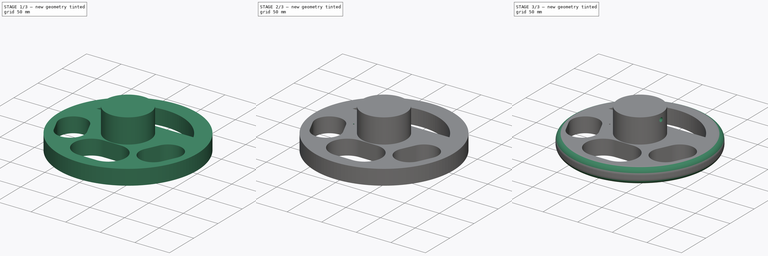
[diagram: build sequence overview — one tinted view per stage of 3, left to right]
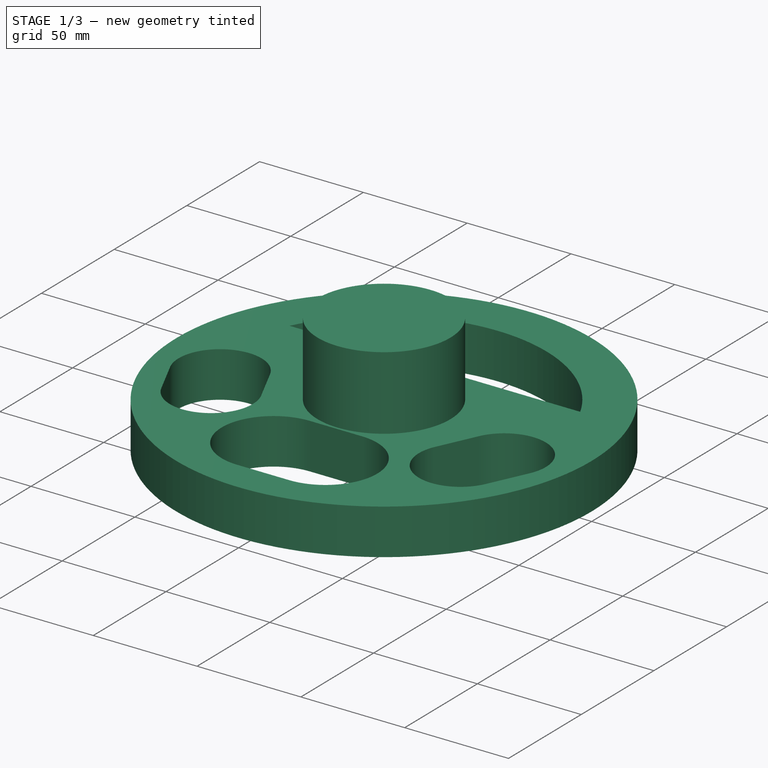
[diagram: stage 1 of 3 — iso view after this stage's code; geometry added in this stage tinted green]
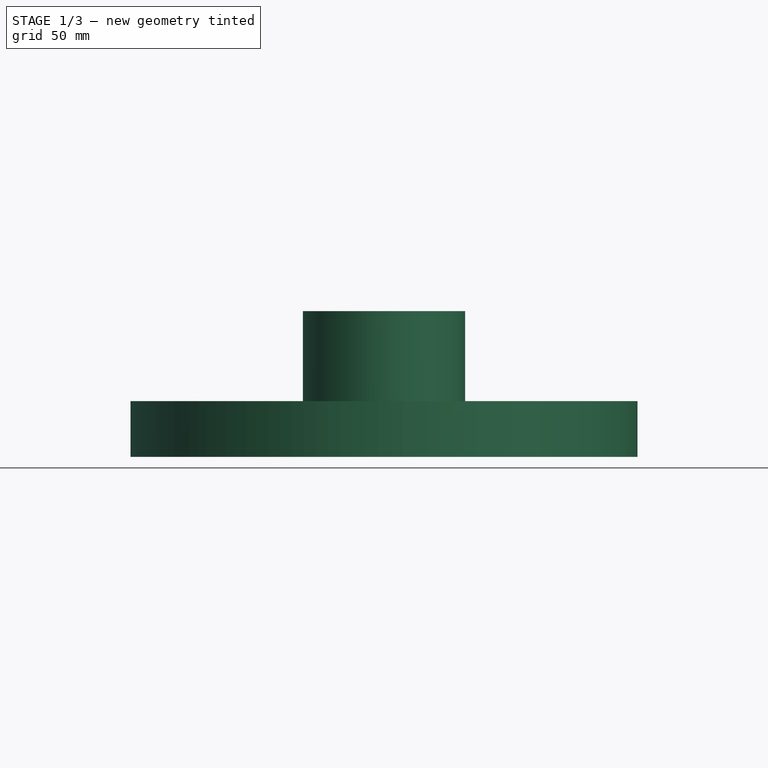
[diagram: stage 1 of 3 — front view after this stage's code; geometry added in this stage tinted green]
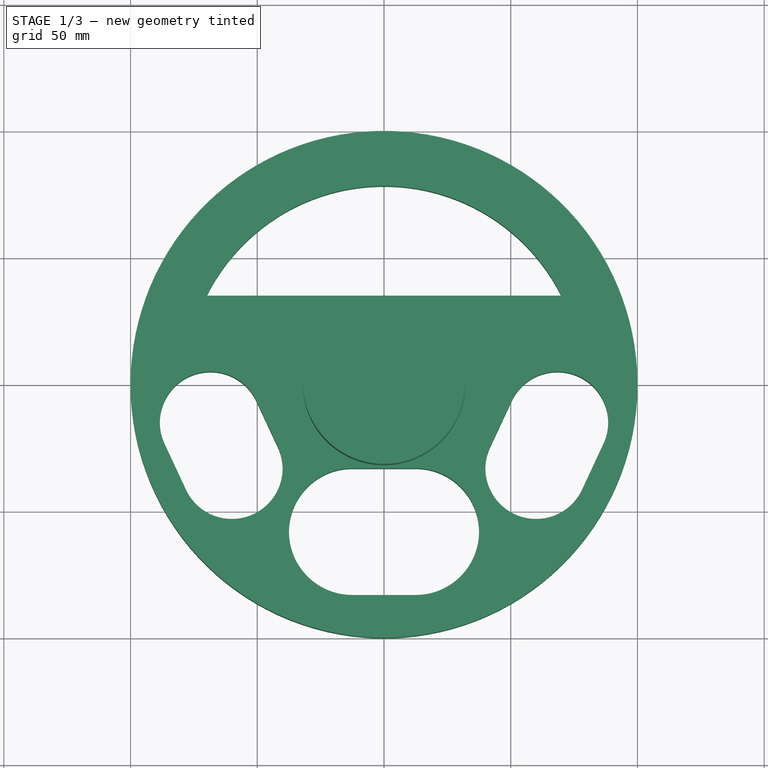
[diagram: stage 1 of 3 — top view after this stage's code; geometry added in this stage tinted green]
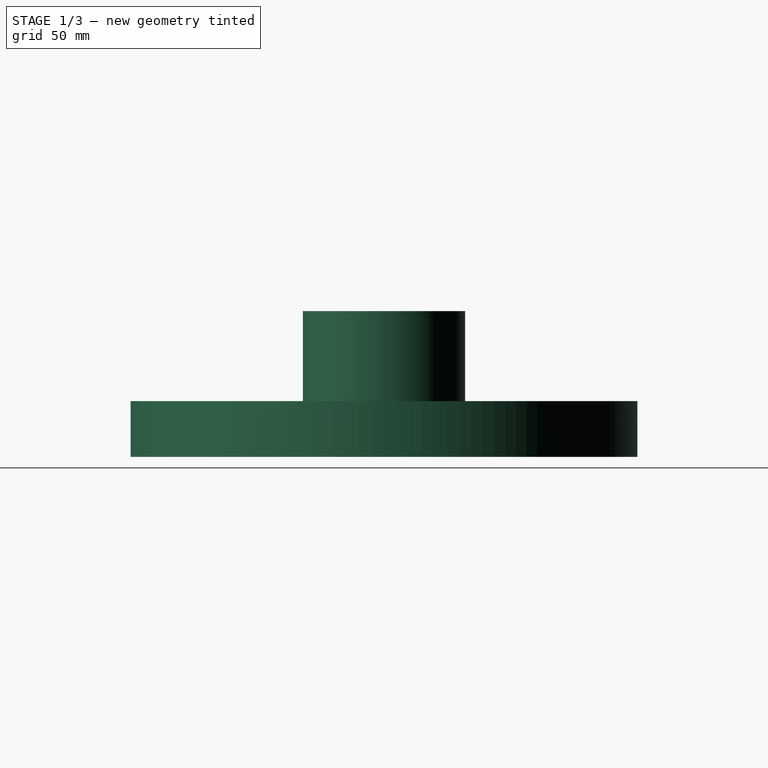
[diagram: stage 1 of 3 — right view after this stage's code; geometry added in this stage tinted green]
FCSTD DOCUMENT  (FreeCAD 0.16R6712 (Git))
Label: steering_wheel
License: All rights reserved
LicenseURL: http://en.wikipedia.org/wiki/All_rights_reserved
objects: Sketcher::SketchObject×4, PartDesign::Pad×3, PartDesign::Pocket×1, PartDesign::Fillet×1
note: 13 computed .brp shape members not serialized (recipe doc carries the construction recipe); baked Part::Feature solids carry a one-line shape summary decoded from their .brp

FEATURE [Sketcher::SketchObject] Sketch
  sketch-geometry (23):
    g0: Circle CenterX=0 CenterY=0 CenterZ=0 NormalX=0 NormalY=0 NormalZ=1 Radius=100
    g1: LineSegment StartX=-70 StartY=35 StartZ=0 EndX=70 EndY=35 EndZ=0
    g2: ArcOfCircle CenterX=0 CenterY=0 CenterZ=0 NormalX=0 NormalY=0 NormalZ=1 Radius=78.2624 StartAngle=0.463648 EndAngle=2.67795
    g3: ArcOfCircle CenterX=-60 CenterY=-33.1262 CenterZ=0 NormalX=0 NormalY=0 NormalZ=1 Radius=20 StartAngle=3.57792 EndAngle=6.71952
    g4: ArcOfCircle CenterX=-68.4524 CenterY=-15 CenterZ=0 NormalX=0 NormalY=0 NormalZ=1 Radius=20 StartAngle=0.436332 EndAngle=3.57792
    g5: LineSegment StartX=-41.8738 StartY=-24.6738 StartZ=0 EndX=-50.3262 EndY=-6.54763 EndZ=0
    g6: LineSegment StartX=-78.1262 StartY=-41.5785 StartZ=0 EndX=-86.5785 EndY=-23.4524 EndZ=0
    g7: ArcOfCircle CenterX=60 CenterY=-33.1262 CenterZ=0 NormalX=0 NormalY=0 NormalZ=1 Radius=20 StartAngle=2.70526 EndAngle=5.84685
    g8: ArcOfCircle CenterX=68.4524 CenterY=-15 CenterZ=0 NormalX=0 NormalY=0 NormalZ=1 Radius=20 StartAngle=5.84685 EndAngle=8.98845
    g9: LineSegment StartX=78.1262 StartY=-41.5785 StartZ=0 EndX=86.5785 EndY=-23.4524 EndZ=0
    g10: LineSegment StartX=41.8738 StartY=-24.6738 StartZ=0 EndX=50.3262 EndY=-6.54763 EndZ=0
    g11: LineSegment StartX=12.5 StartY=-33.1262 StartZ=0 EndX=-12.5 EndY=-33.1262 EndZ=0
    g12: LineSegment StartX=12.5 StartY=-83.1262 StartZ=0 EndX=-12.5 EndY=-83.1262 EndZ=0
    g13: ArcOfCircle CenterX=12.5 CenterY=-58.1262 CenterZ=0 NormalX=0 NormalY=0 NormalZ=1 Radius=25 StartAngle=4.71239 EndAngle=7.85398
    g14: ArcOfCircle CenterX=-12.5 CenterY=-58.1262 CenterZ=0 NormalX=0 NormalY=0 NormalZ=1 Radius=25 StartAngle=1.5708 EndAngle=4.71239
    g15: LineSegment [constr] StartX=-68.4524 StartY=-15 StartZ=0 EndX=68.4524 EndY=-15 EndZ=0
    g16: LineSegment [constr] StartX=68.4524 StartY=-15 StartZ=0 EndX=60 EndY=-33.1262 EndZ=0
    g17: LineSegment [constr] StartX=60 StartY=-33.1262 StartZ=0 EndX=-60 EndY=-33.1262 EndZ=0
    g18: LineSegment [constr] StartX=-60 StartY=-33.1262 StartZ=0 EndX=-68.4524 EndY=-15 EndZ=0
    g19: LineSegment [constr] StartX=-12.5 StartY=-58.1262 StartZ=0 EndX=0 EndY=0 EndZ=0
    g20: LineSegment [constr] StartX=12.5 StartY=-58.1262 StartZ=0 EndX=0 EndY=0 EndZ=0
    g21: LineSegment [constr] StartX=-68.4524 StartY=-15 StartZ=0 EndX=0 EndY=0 EndZ=0
    g22: LineSegment [constr] StartX=68.4524 StartY=-15 StartZ=0 EndX=0 EndY=0 EndZ=0
  constraints (54):
    c: Coincident(g0,g-1)
    c: Radius(g0) = 100
    c: Horizontal(g1)
    c: Coincident(g2,g1)
    c: Coincident(g1,g2)
    c: Coincident(g2,g-1)
    c: DistanceY(g-1,g1) = 35
    c: DistanceX(g1,g1) = 140
    c: Tangent(g3,g6) = 1.5708
    c: Tangent(g3,g5) = -1.5708
    c: Tangent(g5,g4) = -1.5708
    c: Tangent(g6,g4) = 1.5708
    c: Equal(g3,g4)
    c: Tangent(g7,g10) = 1.5708
    c: Tangent(g7,g9) = -1.5708
    c: Tangent(g9,g8) = -1.5708
    c: Tangent(g10,g8) = 1.5708
    c: Equal(g7,g8)
    c: Tangent(g13,g12) = 1.5708
    c: Tangent(g13,g11) = -1.5708
    c: Tangent(g11,g14) = -1.5708
    c: Tangent(g12,g14) = 1.5708
    c: Equal(g13,g14)
    c: Horizontal(g11)
    c: Coincident(g15,g16)
    c: Coincident(g16,g17)
    c: Coincident(g17,g18)
    c: Coincident(g18,g15)
    c: Horizontal(g15)
    c: Horizontal(g17)
    c: Coincident(g15,g4)
    c: Coincident(g16,g7)
    c: Coincident(g3,g17)
    c: Coincident(g15,g8)
    c: Equal(g18,g16)
    c: Angle(g17,g18) = 2.00713
    c: Distance(g18) = 20
    c: PointOnObject(g11,g17)
    c: Equal(g4,g8)
    c: Coincident(g19,g14)
    c: Coincident(g19,g-1)
    c: Coincident(g20,g13)
    c: Coincident(g20,g-1)
    c: Equal(g20,g19)
    c: DistanceY(g8,g-1) = 15
    c: DistanceX(g14,g13) = 25
    c: Radius(g13) = 25
    c: Radius(g7) = 20
    c: DistanceX(g17,g17) = 120
    c: Coincident(g21,g4)
    c: Coincident(g21,g-1)
    c: Coincident(g22,g8)
    c: Coincident(g22,g-1)
    c: Equal(g22,g21)
FEATURE [PartDesign::Pad] Pad
  Length = 22
  Length2 = 100
  Sketch = -> Sketch
  Type = 0
FEATURE [Sketcher::SketchObject] Sketch001
  Placement = pos=(0,0,22) rot=(0,0,1;0rad)
  Support = -> Pad [Face17]
  sketch-geometry (1):
    g0: Circle CenterX=0 CenterY=0 CenterZ=0 NormalX=0 NormalY=0 NormalZ=1 Radius=32
  constraints (2):
    c: Coincident(g0,g-1)
    c: Radius(g0) = 32
FEATURE [PartDesign::Pad] Pad001
  Length = 35.5
  Length2 = 100
  Sketch = -> Sketch001
  Type = 0
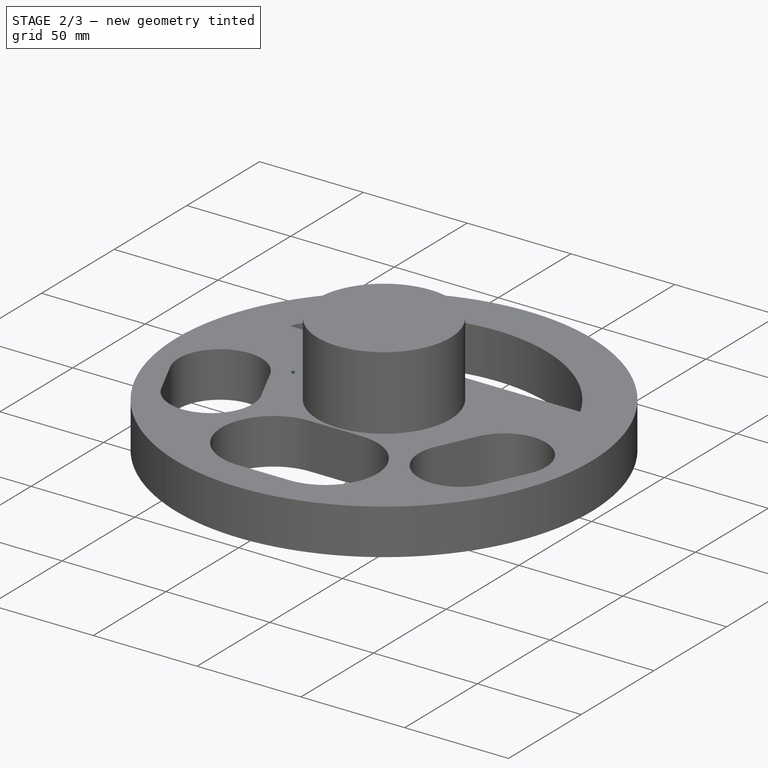
[diagram: stage 2 of 3 — iso view after this stage's code; geometry added in this stage tinted green]
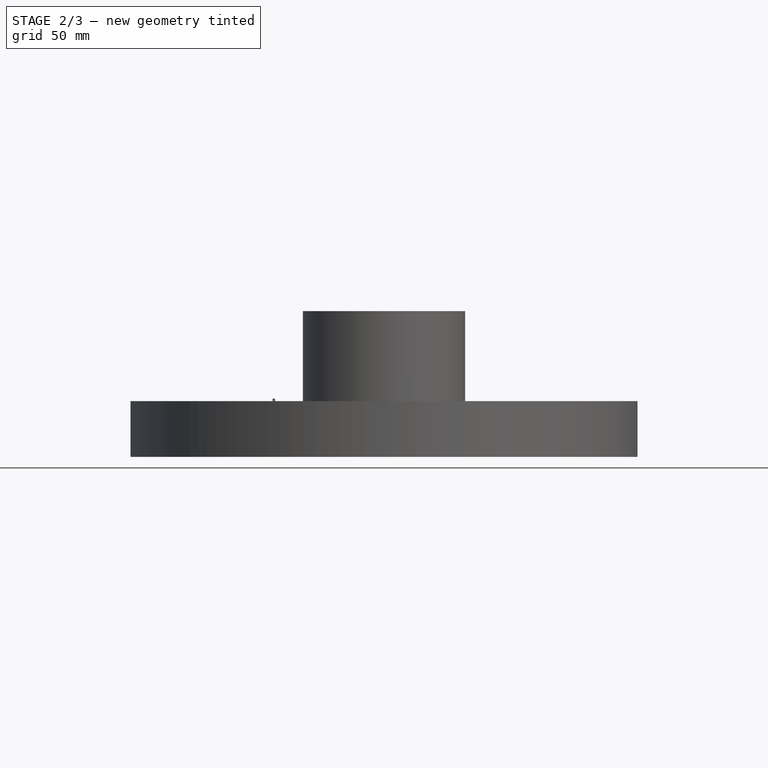
[diagram: stage 2 of 3 — front view after this stage's code; geometry added in this stage tinted green]
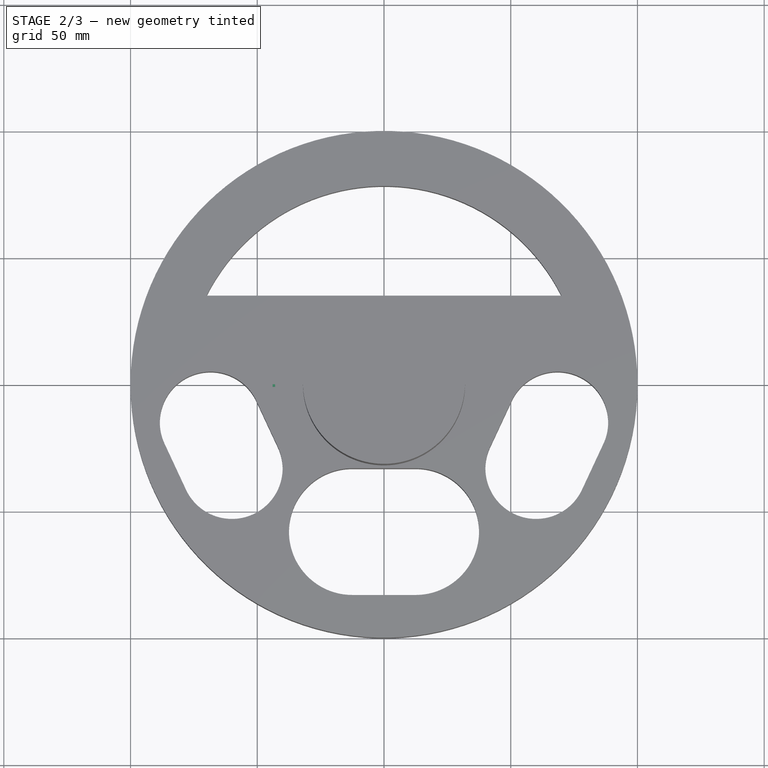
[diagram: stage 2 of 3 — top view after this stage's code; geometry added in this stage tinted green]
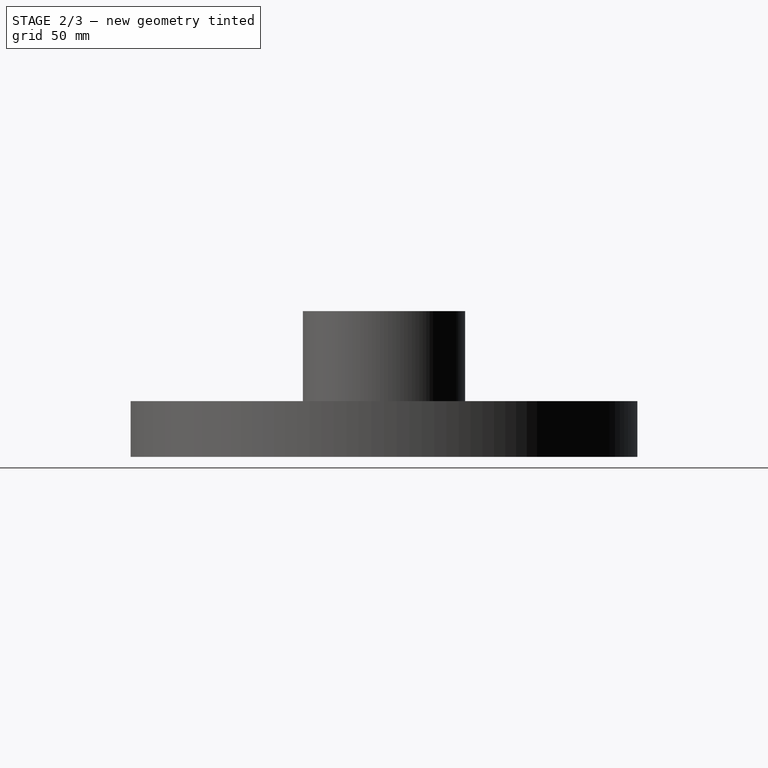
[diagram: stage 2 of 3 — right view after this stage's code; geometry added in this stage tinted green]
FEATURE [Sketcher::SketchObject] Sketch002
  Placement = pos=(0,0,22) rot=(0,0,1;0rad)
  Support = -> Pad001 [Face3]
  sketch-geometry (4):
    g0: LineSegment StartX=-43.9411 StartY=0 StartZ=0 EndX=-42.9411 EndY=0 EndZ=0
    g1: LineSegment StartX=-42.9411 StartY=0 StartZ=0 EndX=-42.9411 EndY=-1 EndZ=0
    g2: LineSegment StartX=-42.9411 StartY=-1 StartZ=0 EndX=-43.9411 EndY=-1 EndZ=0
    g3: LineSegment StartX=-43.9411 StartY=-1 StartZ=0 EndX=-43.9411 EndY=0 EndZ=0
  constraints (12):
    c: Coincident(g0,g1)
    c: Coincident(g1,g2)
    c: Coincident(g2,g3)
    c: Coincident(g3,g0)
    c: Horizontal(g0)
    c: Horizontal(g2)
    c: Vertical(g1)
    c: Vertical(g3)
    c: PointOnObject(g0,g-1)
    c: Equal(g0,g1)
    c: DistanceX(g0,g0) = 1
    c: DistanceX(g0) = -42.9411
FEATURE [PartDesign::Pad] Pad002
  Length = 1
  Length2 = 100
  Sketch = -> Sketch002
  Type = 0
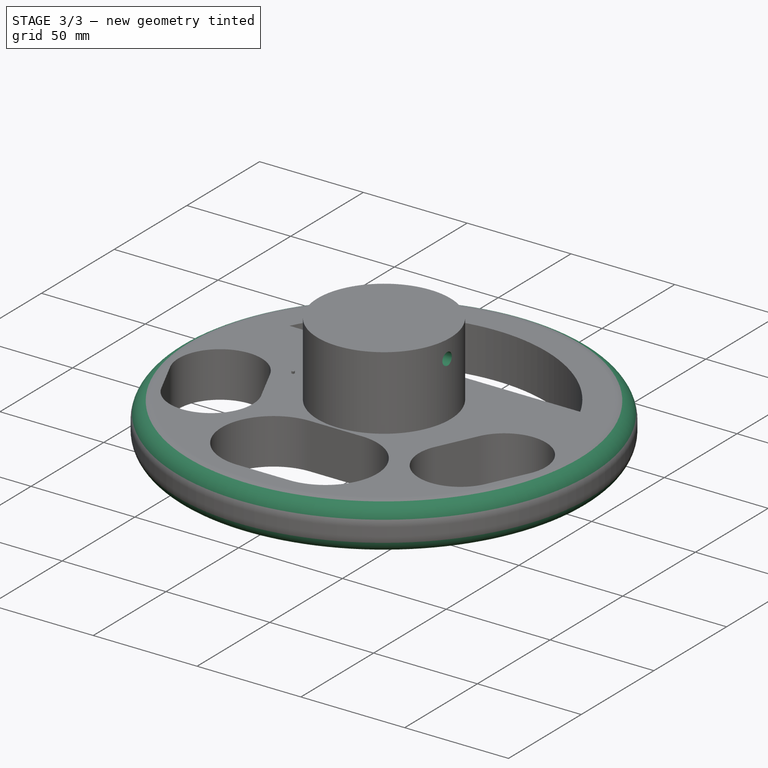
[diagram: stage 3 of 3 — iso view after this stage's code; geometry added in this stage tinted green]
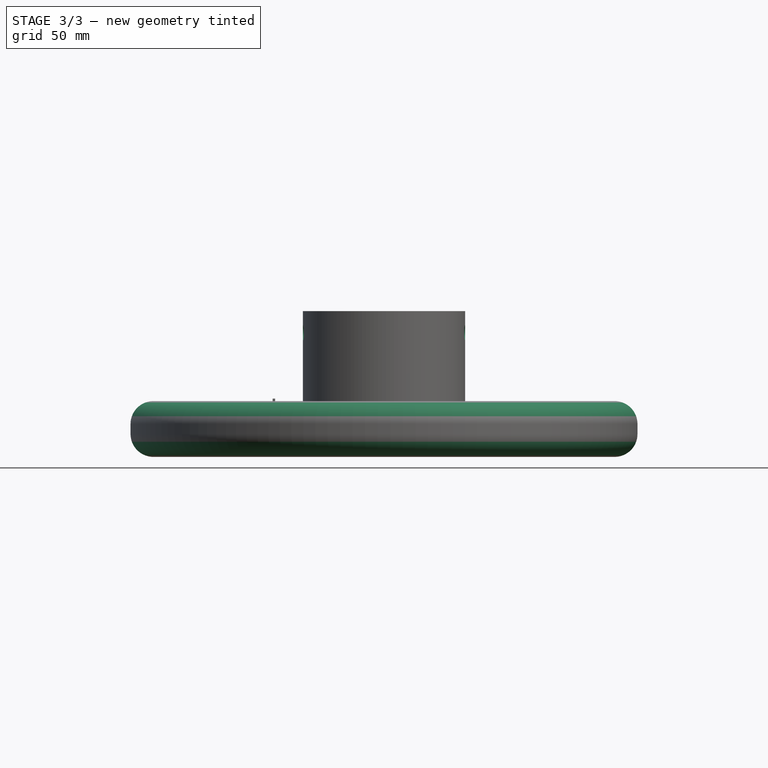
[diagram: stage 3 of 3 — front view after this stage's code; geometry added in this stage tinted green]
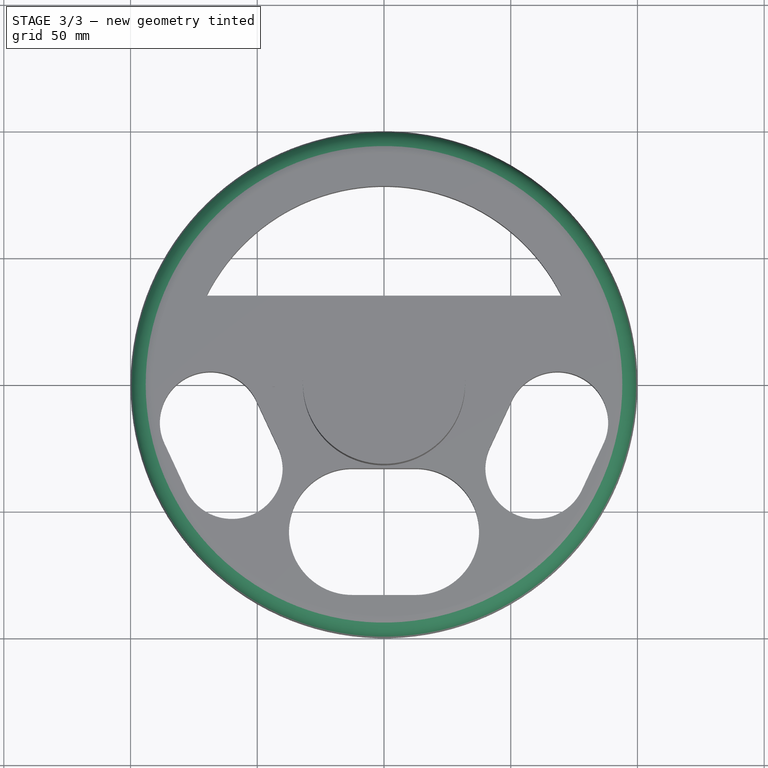
[diagram: stage 3 of 3 — top view after this stage's code; geometry added in this stage tinted green]
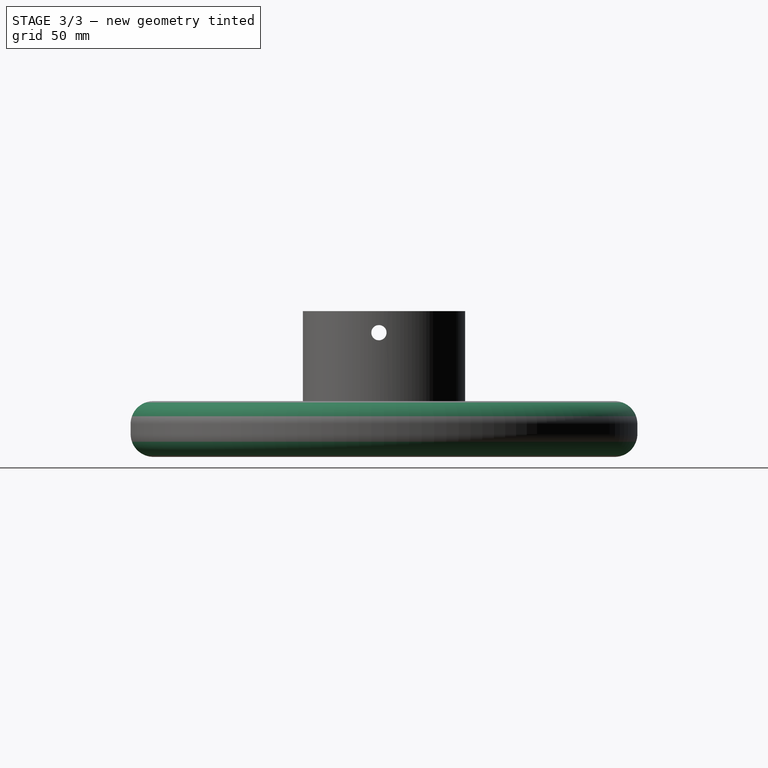
[diagram: stage 3 of 3 — right view after this stage's code; geometry added in this stage tinted green]
FEATURE [Sketcher::SketchObject] Sketch003
  ExternalGeometry = -> [Pad002]
  Placement = pos=(-43.9411,0,0) rot=(0.57735,-0.57735,-0.57735;2.0944rad)
  Support = -> Pad002 [Face21]
  sketch-geometry (1):
    g0: Circle CenterX=2 CenterY=49 CenterZ=0 NormalX=0 NormalY=0 NormalZ=1 Radius=3
  constraints (3):
    c: DistanceX(g-1,g0) = 2
    c: Radius(g0) = 3
    c: DistanceY(g-3,g0) = 27
FEATURE [PartDesign::Pocket] Pocket
  Length = 5
  Sketch = -> Sketch003
  Type = 1
FEATURE [PartDesign::Fillet] Fillet
  Base = -> Pocket [Edge3,Edge2]
  Radius = 9
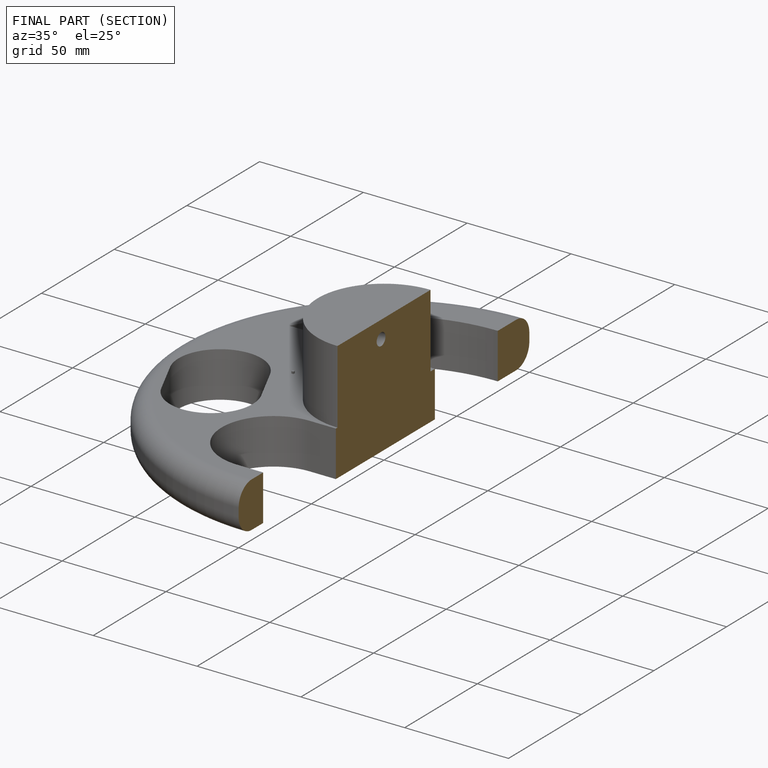
[diagram: finished part — half-section view (interior)]
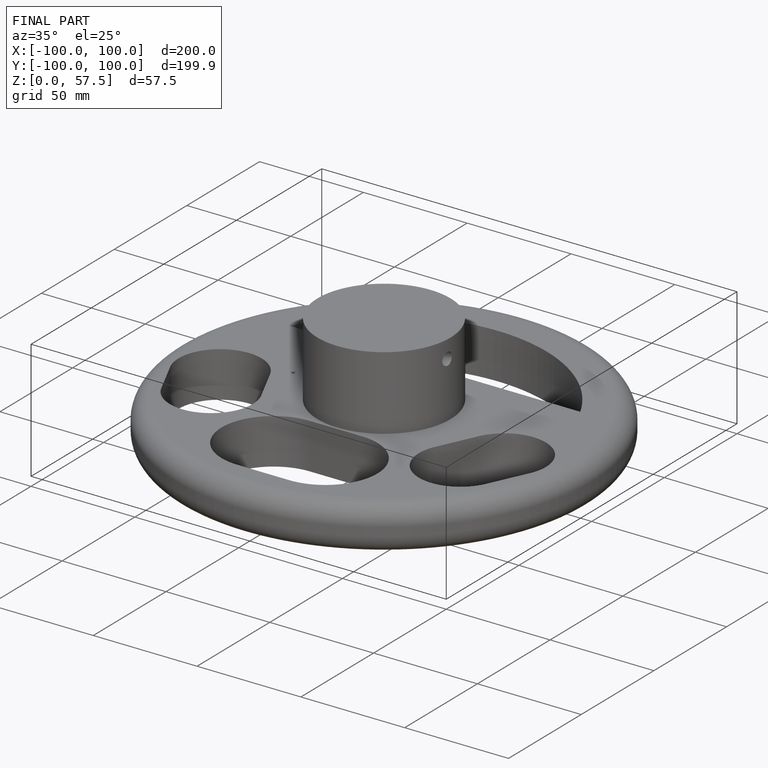
[diagram: finished part — iso view with bounding-box wireframe]
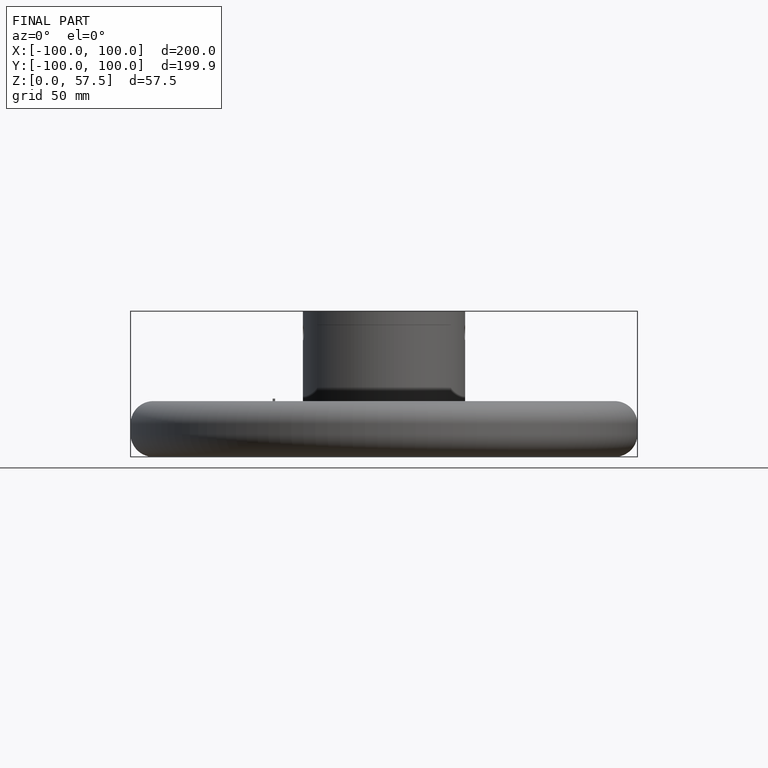
[diagram: finished part — front view with bounding-box wireframe]
